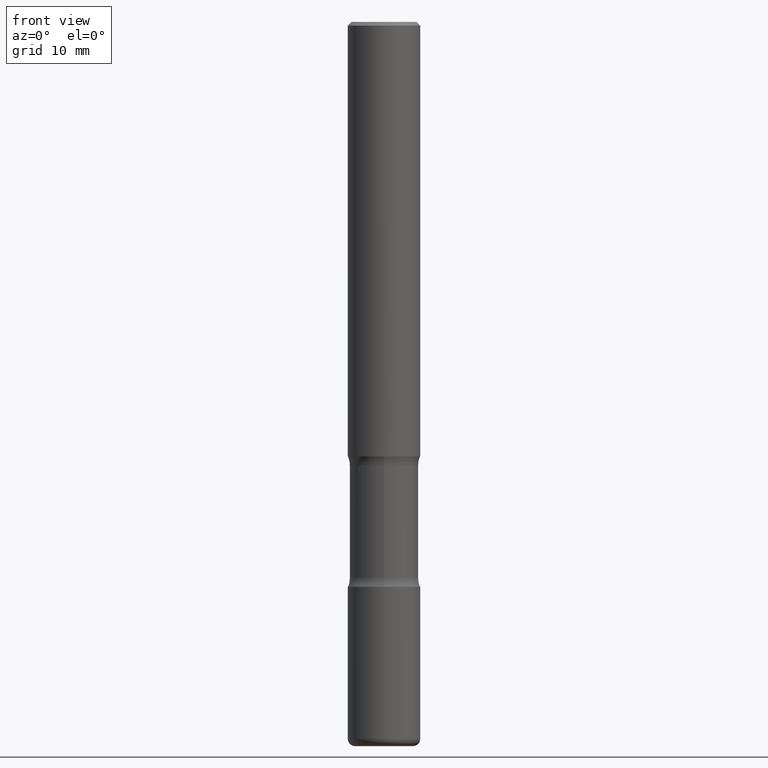
[diagram: clean part render]
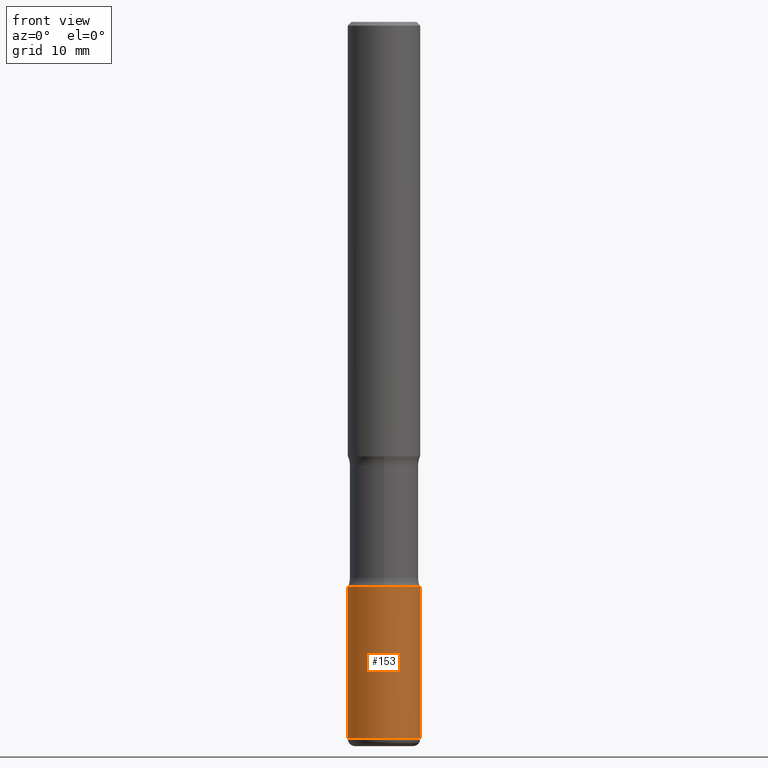
[diagram: same view with one face highlighted and labeled with its STEP entity id]
A machine part, front view. The second image highlights one B-rep face of the part: STEP entity #153.
In plain terms, the highlighted cylindrical surface (edge-blend (fillet) strip) has radius 5 mm, axis along (-0, 0, 1).
Its self-contained STEP definition (entity closure, byte-faithful):
#6 = CARTESIAN_POINT ( 'NONE',  ( -0.1968500000000002192, -1.220969429093128562E-14, -3.897600000000000176 ) ) ;
#8 = CARTESIAN_POINT ( 'NONE',  ( -0.1968500000000002470, 1.398703375343758971E-15, -9.682923725166793487E-30 ) ) ;
#9 = DIRECTION ( 'NONE',  ( 1.000000000000000000, -6.982962677686266711E-15, 0.000000000000000000 ) ) ;
#14 = CIRCLE ( 'NONE', #497, 0.1968500000000001915 ) ;
#21 = CARTESIAN_POINT ( 'NONE',  ( -0.1968500000000001915, -1.076649047952047064E-14, -3.070900000000000407 ) ) ;
#29 = EDGE_CURVE ( 'NONE', #476, #243, #122, .T. ) ;
#55 = CARTESIAN_POINT ( 'NONE',  ( 9.531459218987189074E-29, -1.360839766627504420E-14, -3.897600000000000176 ) ) ;
#64 = DIRECTION ( 'NONE',  ( 1.000000000000000000, -6.982962677686272233E-15, 0.000000000000000000 ) ) ;
#77 = VERTEX_POINT ( 'NONE', #21 ) ;
#79 = VECTOR ( 'NONE', #482, 39.37007874015748143 ) ;
#99 = ORIENTED_EDGE ( 'NONE', *, *, #436, .F. ) ;
#106 = CARTESIAN_POINT ( 'NONE',  ( 0.000000000000000000, 0.000000000000000000, 0.000000000000000000 ) ) ;
#111 = DIRECTION ( 'NONE',  ( -2.445468806185136597E-29, 3.491481338843145583E-15, 1.000000000000000000 ) ) ;
#122 = CIRCLE ( 'NONE', #350, 0.1968500000000003303 ) ;
#141 = EDGE_CURVE ( 'NONE', #77, #181, #14, .T. ) ;
#153 = ADVANCED_FACE ( 'NONE', ( #158 ), #327, .T. ) ;
#158 = FACE_OUTER_BOUND ( 'NONE', #304, .T. ) ;
#181 = VERTEX_POINT ( 'NONE', #200 ) ;
#200 = CARTESIAN_POINT ( 'NONE',  ( 0.1968500000000001915, -1.209658624655596058E-14, -3.070900000000000407 ) ) ;
#243 = VERTEX_POINT ( 'NONE', #463 ) ;
#248 = VECTOR ( 'NONE', #377, 39.37007874015748143 ) ;
#286 = DIRECTION ( 'NONE',  ( -2.445468806185136597E-29, 3.491481338843145583E-15, 1.000000000000000000 ) ) ;
#291 = LINE ( 'NONE', #459, #248 ) ;
#292 = EDGE_CURVE ( 'NONE', #243, #181, #291, .T. ) ;
#304 = EDGE_LOOP ( 'NONE', ( #99, #428, #513, #460 ) ) ;
#327 = CYLINDRICAL_SURFACE ( 'NONE', #462, 0.1968500000000002470 ) ;
#350 = AXIS2_PLACEMENT_3D ( 'NONE', #55, #396, #9 ) ;
#377 = DIRECTION ( 'NONE',  ( -2.445468806185136877E-29, 3.491481338843145188E-15, 1.000000000000000000 ) ) ;
#396 = DIRECTION ( 'NONE',  ( -2.445468806185136597E-29, 3.491481338843145583E-15, 1.000000000000000000 ) ) ;
#428 = ORIENTED_EDGE ( 'NONE', *, *, #29, .T. ) ;
#434 = LINE ( 'NONE', #8, #79 ) ;
#436 = EDGE_CURVE ( 'NONE', #476, #77, #434, .T. ) ;
#459 = CARTESIAN_POINT ( 'NONE',  ( 0.1968500000000002470, -1.374596203102543383E-15, 9.598753983154312069E-30 ) ) ;
#460 = ORIENTED_EDGE ( 'NONE', *, *, #141, .F. ) ;
#462 = AXIS2_PLACEMENT_3D ( 'NONE', #106, #286, #494 ) ;
#463 = CARTESIAN_POINT ( 'NONE',  ( 0.1968500000000002192, -1.498299386937758423E-14, -3.897600000000000176 ) ) ;
#476 = VERTEX_POINT ( 'NONE', #6 ) ;
#482 = DIRECTION ( 'NONE',  ( -2.445468806185136877E-29, 3.491481338843145188E-15, 1.000000000000000000 ) ) ;
#494 = DIRECTION ( 'NONE',  ( 1.000000000000000000, -6.982962677686266711E-15, 4.876176775795935793E-29 ) ) ;
#497 = AXIS2_PLACEMENT_3D ( 'NONE', #530, #111, #64 ) ;
#513 = ORIENTED_EDGE ( 'NONE', *, *, #292, .T. ) ;
#530 = CARTESIAN_POINT ( 'NONE',  ( 7.509790156913936305E-29, -1.072199004345341739E-14, -3.070900000000000407 ) ) ;